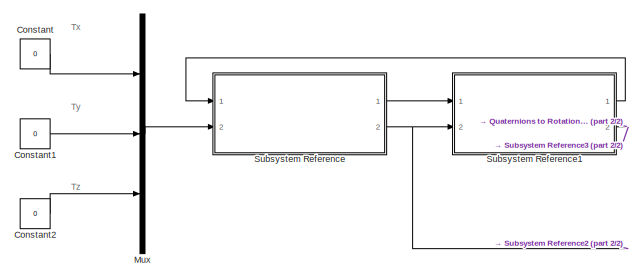
[diagram: root canvas - part 1/2, top left region]
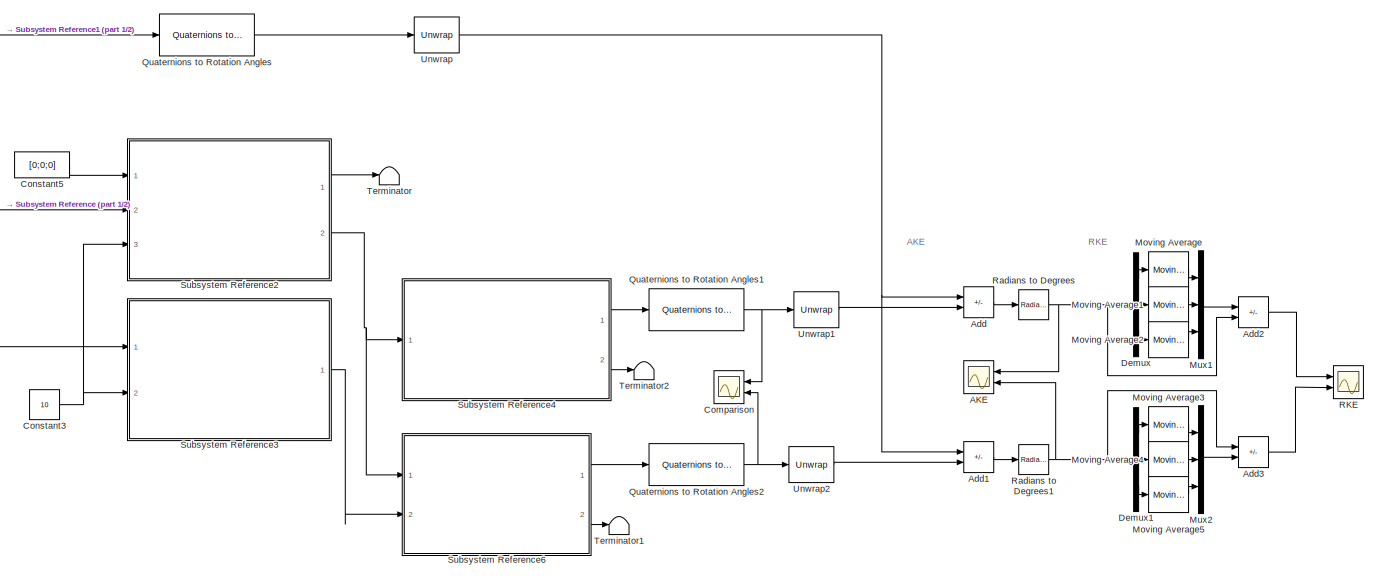
[diagram: root canvas - part 2/2, center side, full height]
MODEL slx_01b3ae9c809d
KIND model
CONFIG AbsTol = auto
CONFIG EnableMultiTasking = off
CONFIG FixedStep = auto
CONFIG MaxStep = auto
CONFIG MinStep = auto
CONFIG RelTol = 1e-3
CONFIG SampleTimeConstraint = Unconstrained
CONFIG SolverName = VariableStepAuto
CONFIG StartTime = 0.0
CONFIG StopTime = 3600
BLOCK [Scope] AKE
  Floating = off
  NameLocation = top
  NumInputPorts = 2
  Ports = [2]
  ScopeSpecificationString = Simulink.scopes.TimeScopeBlockCfg('CurrentConfiguration', extmgr.ConfigurationSet(extmgr.Configuration('Core','General UI',true),extmgr.Configuration('Core','Source UI',true),extmgr.Configuration('Sources','WiredSimulink',true),extmgr.Configuration('Visuals','Time Domain',true,'SerializedDisplays',{struct('MinYLimReal','-11.87457','MaxYLimReal','13.53858','YLabelReal','','MinYLimMag','0.00000','Ma...<+2155ch>
BLOCK [Sum] Add
  IconShape = rectangular
  Inputs = +-
  Ports = [2, 1]
BLOCK [Sum] Add1
  IconShape = rectangular
  Inputs = -+
  Ports = [2, 1]
BLOCK [Sum] Add2
  IconShape = rectangular
  Inputs = -+
  Ports = [2, 1]
BLOCK [Sum] Add3
  IconShape = rectangular
  Inputs = +-
  Ports = [2, 1]
BLOCK [Scope] Comparison
  Floating = off
  NameLocation = top
  NumInputPorts = 2
  Ports = [2]
  ScopeSpecificationString = Simulink.scopes.TimeScopeBlockCfg('CurrentConfiguration', extmgr.ConfigurationSet(extmgr.Configuration('Core','General UI',true),extmgr.Configuration('Core','Source UI',true),extmgr.Configuration('Sources','WiredSimulink',true,'DataLoggingVariableName','ScopeData2'),extmgr.Configuration('Visuals','Time Domain',true,'SerializedDisplays',{struct('MinYLimReal','-3.92613','MaxYLimReal','3.92676','YLab...<+2247ch>
BLOCK [Constant] Constant
  Value = 0
BLOCK [Constant] Constant1
  Value = 0
BLOCK [Constant] Constant2
  Value = 0
BLOCK [Constant] Constant3
  Value = 10
BLOCK [Constant] Constant5
  Value = [0;0;0]
BLOCK [Demux] Demux
  Outputs = 3
  Ports = [1, 3]
BLOCK [Demux] Demux1
  Outputs = 3
  Ports = [1, 3]
BLOCK [Reference] Moving Average  REF=dspstat3/Moving
Average
  Ports = [1, 1]
  SourceBlock = dspstat3/Moving\nAverage
  SourceProductBaseCode = DS
  SourceType = dsp.simulink.MovingAverage
BLOCK [Reference] Moving Average1  REF=dspstat3/Moving
Average
  Ports = [1, 1]
  SourceBlock = dspstat3/Moving\nAverage
  SourceProductBaseCode = DS
  SourceType = dsp.simulink.MovingAverage
BLOCK [Reference] Moving Average2  REF=dspstat3/Moving
Average
  Ports = [1, 1]
  SourceBlock = dspstat3/Moving\nAverage
  SourceProductBaseCode = DS
  SourceType = dsp.simulink.MovingAverage
BLOCK [Reference] Moving Average3  REF=dspstat3/Moving
Average
  Ports = [1, 1]
  SourceBlock = dspstat3/Moving\nAverage
  SourceProductBaseCode = DS
  SourceType = dsp.simulink.MovingAverage
BLOCK [Reference] Moving Average4  REF=dspstat3/Moving
Average
  Ports = [1, 1]
  SourceBlock = dspstat3/Moving\nAverage
  SourceProductBaseCode = DS
  SourceType = dsp.simulink.MovingAverage
BLOCK [Reference] Moving Average5  REF=dspstat3/Moving
Average
  Ports = [1, 1]
  SourceBlock = dspstat3/Moving\nAverage
  SourceProductBaseCode = DS
  SourceType = dsp.simulink.MovingAverage
BLOCK [Mux] Mux
  DisplayOption = bar
  Inputs = 3
  Ports = [3, 1]
BLOCK [Mux] Mux1
  DisplayOption = bar
  Inputs = 3
  Ports = [3, 1]
BLOCK [Mux] Mux2
  DisplayOption = bar
  Inputs = 3
  Ports = [3, 1]
BLOCK [Reference] Quaternions to Rotation Angles  REF=sharedtransform/Quaternions to Rotation Angles
  AttributesFormatString = Rotation Order: %<rotationOrder>
  Ports = [1, 1]
  SourceBlock = sharedtransform/Quaternions to Rotation Angles
  SourceProductBaseCode = AE,PW,DR,MT,UV,VE
  SourceType = Quat2Ang
BLOCK [Reference] Quaternions to Rotation Angles1  REF=sharedtransform/Quaternions to Rotation Angles
  AttributesFormatString = Rotation Order: %<rotationOrder>
  Ports = [1, 1]
  SourceBlock = sharedtransform/Quaternions to Rotation Angles
  SourceProductBaseCode = AE,PW,DR,MT,UV,VE
  SourceType = Quat2Ang
BLOCK [Reference] Quaternions to Rotation Angles2  REF=sharedtransform/Quaternions to Rotation Angles
  AttributesFormatString = Rotation Order: %<rotationOrder>
  Ports = [1, 1]
  SourceBlock = sharedtransform/Quaternions to Rotation Angles
  SourceProductBaseCode = AE,PW,DR,MT,UV,VE
  SourceType = Quat2Ang
BLOCK [Scope] RKE
  Floating = off
  NumInputPorts = 2
  Ports = [2]
  ScopeSpecificationString = Simulink.scopes.TimeScopeBlockCfg('CurrentConfiguration', extmgr.ConfigurationSet(extmgr.Configuration('Core','General UI',true),extmgr.Configuration('Core','Source UI',true),extmgr.Configuration('Sources','WiredSimulink',true,'DataLoggingVariableName','ScopeData1'),extmgr.Configuration('Visuals','Time Domain',true,'SerializedDisplays',{struct('MinYLimReal','-0.09964','MaxYLimReal','0.09011','YLab...<+2098ch>
BLOCK [Reference] Radians to Degrees  REF=simulink_extras/Transformations/Radians
to Degrees
  Ports = [1, 1]
  SourceBlock = simulink_extras/Transformations/Radians\nto Degrees
  SourceProductBaseCode = SL
  SourceType = RadiansToDegrees
BLOCK [Reference] Radians to Degrees1  REF=simulink_extras/Transformations/Radians
to Degrees
  Ports = [1, 1]
  SourceBlock = simulink_extras/Transformations/Radians\nto Degrees
  SourceProductBaseCode = SL
  SourceType = RadiansToDegrees
BLOCK [SubSystem] Subsystem Reference
  Ports = [2, 2]
  ReferencedSubsystem = Dynamics
  RequestExecContextInheritance = off
BLOCK [SubSystem] Subsystem Reference1
  Ports = [2, 2]
  ReferencedSubsystem = Kinematics
  RequestExecContextInheritance = off
BLOCK [SubSystem] Subsystem Reference2
  Ports = [3, 2]
  ReferencedSubsystem = IMU
  RequestExecContextInheritance = off
BLOCK [SubSystem] Subsystem Reference3
  Ports = [2, 1]
  ReferencedSubsystem = StarTracker
  RequestExecContextInheritance = off
BLOCK [SubSystem] Subsystem Reference4
  Ports = [1, 2]
  ReferencedSubsystem = InertialNavigationSolution
  RequestExecContextInheritance = off
BLOCK [SubSystem] Subsystem Reference6
  Ports = [2, 2]
  ReferencedSubsystem = NavigationSolution
  RequestExecContextInheritance = off
BLOCK [Terminator] Terminator
BLOCK [Terminator] Terminator1
BLOCK [Terminator] Terminator2
BLOCK [Reference] Unwrap  REF=dspsigops/Unwrap
  Ports = [1, 1]
  SourceBlock = dspsigops/Unwrap
  SourceProductBaseCode = DS
  SourceType = Unwrap
  UserDataPersistent = on
BLOCK [Reference] Unwrap1  REF=dspsigops/Unwrap
  Ports = [1, 1]
  SourceBlock = dspsigops/Unwrap
  SourceProductBaseCode = DS
  SourceType = Unwrap
  UserDataPersistent = on
BLOCK [Reference] Unwrap2  REF=dspsigops/Unwrap
  Ports = [1, 1]
  SourceBlock = dspsigops/Unwrap
  SourceProductBaseCode = DS
  SourceType = Unwrap
  UserDataPersistent = on
ANNOTATION (root): Tx
ANNOTATION (root): Ty
ANNOTATION (root): Tz
ANNOTATION (root): AKE
ANNOTATION (root): RKE
LINE Add1:1 -> Radians to Degrees1:1
LINE Add2:1 -> RKE:1
LINE Add3:1 -> RKE:2
LINE Add:1 -> Radians to Degrees:1
LINE Constant1:1 -> Mux:2
LINE Constant2:1 -> Mux:3
NET Constant3:1 -> Subsystem Reference2:3, Subsystem Reference3:2
LINE Constant5:1 -> Subsystem Reference2:1
LINE Constant:1 -> Mux:1
LINE Demux1:1 -> Moving Average3:1
LINE Demux1:2 -> Moving Average4:1
LINE Demux1:3 -> Moving Average5:1
LINE Demux:1 -> Moving Average:1
LINE Demux:2 -> Moving Average1:1
LINE Demux:3 -> Moving Average2:1
LINE Moving Average1:1 -> Mux1:2
LINE Moving Average2:1 -> Mux1:3
LINE Moving Average3:1 -> Mux2:1
LINE Moving Average4:1 -> Mux2:2
LINE Moving Average5:1 -> Mux2:3
LINE Moving Average:1 -> Mux1:1
LINE Mux1:1 -> Add2:1
LINE Mux2:1 -> Add3:2
LINE Mux:1 -> Subsystem Reference:2
NET Quaternions to Rotation Angles1:1 -> Comparison:1, Unwrap1:1
NET Quaternions to Rotation Angles2:1 -> Comparison:2, Unwrap2:1
LINE Quaternions to Rotation Angles:1 -> Unwrap:1
NET Radians to Degrees1:1 -> AKE:2, Add3:1, Demux1:1
NET Radians to Degrees:1 -> AKE:1, Add2:2, Demux:1
LINE Subsystem Reference1:1 -> Subsystem Reference:1
NET Subsystem Reference1:2 -> Quaternions to Rotation Angles:1, Subsystem Reference3:1
LINE Subsystem Reference2:1 -> Terminator:1
NET Subsystem Reference2:2 -> Subsystem Reference4:1, Subsystem Reference6:1
LINE Subsystem Reference3:1 -> Subsystem Reference6:2
LINE Subsystem Reference4:1 -> Quaternions to Rotation Angles1:1
LINE Subsystem Reference4:2 -> Terminator2:1
LINE Subsystem Reference6:1 -> Quaternions to Rotation Angles2:1
LINE Subsystem Reference6:2 -> Terminator1:1
LINE Subsystem Reference:1 -> Subsystem Reference1:1
NET Subsystem Reference:2 -> Subsystem Reference1:2, Subsystem Reference2:2
LINE Unwrap1:1 -> Add:2
LINE Unwrap2:1 -> Add1:2
NET Unwrap:1 -> Add1:1, Add:1
note: NET lines group one-source signal fan-out (src -> all destinations, sorted); 1:1 wires keep LINE
